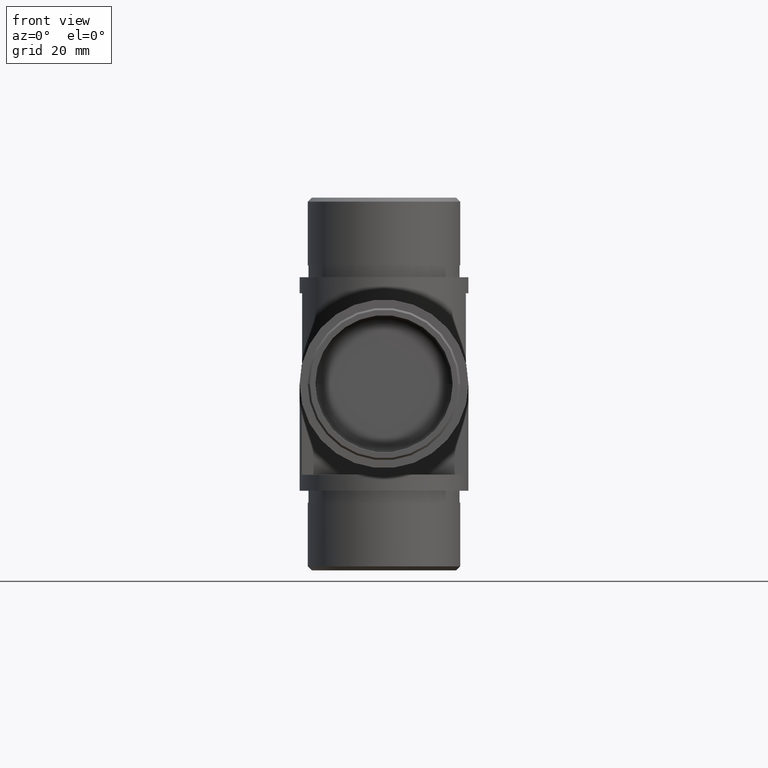
[diagram: clean part render]
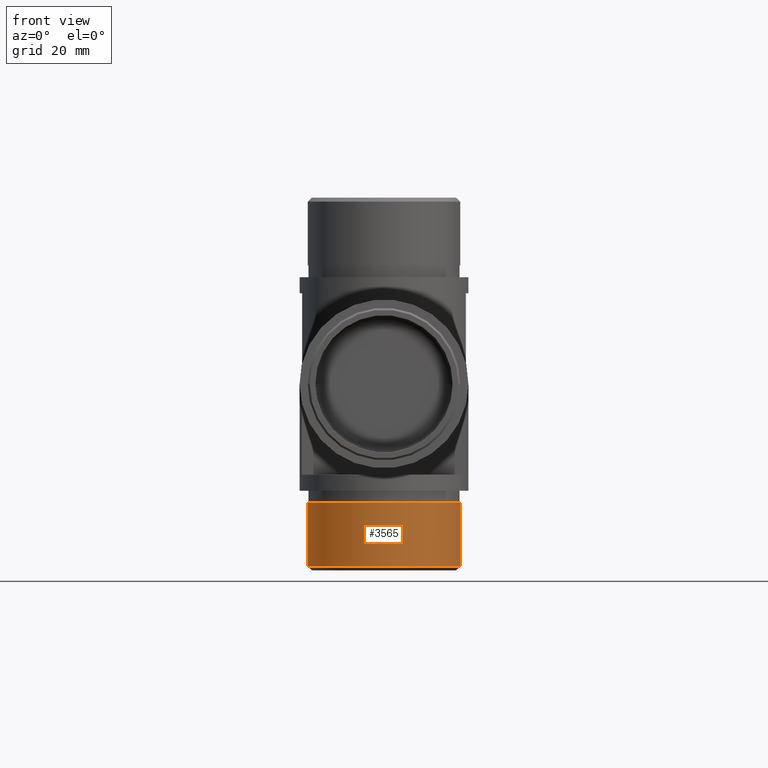
[diagram: same view with one face highlighted and labeled with its STEP entity id]
A machine part, front view. The second image highlights one B-rep face of the part: STEP entity #3565.
In plain terms, the highlighted cylindrical surface (partial cylindrical patch) has radius 19.15 mm, axis along (0, 0, 1).
Its self-contained STEP definition (entity closure, byte-faithful):
#391 = LINE ( 'NONE', #19127, #21326 ) ;
#454 = AXIS2_PLACEMENT_3D ( 'NONE', #8608, #11838, #3737 ) ;
#995 = DIRECTION ( 'NONE',  ( -1.000000000000000000, 0.000000000000000000, 0.000000000000000000 ) ) ;
#1355 = VERTEX_POINT ( 'NONE', #17376 ) ;
#1601 = ORIENTED_EDGE ( 'NONE', *, *, #2992, .T. ) ;
#1922 = EDGE_CURVE ( 'NONE', #1355, #7563, #16718, .T. ) ;
#2941 = DIRECTION ( 'NONE',  ( 0.000000000000000000, 0.000000000000000000, 1.000000000000000000 ) ) ;
#2992 = EDGE_CURVE ( 'NONE', #7563, #14811, #391, .T. ) ;
#3263 = CYLINDRICAL_SURFACE ( 'NONE', #11653, 19.14999999999999858 ) ;
#3333 = CARTESIAN_POINT ( 'NONE',  ( -19.14999999999999858, 2.345198620367181006E-15, -2.999999999999999112 ) ) ;
#3565 = ADVANCED_FACE ( 'NONE', ( #11028 ), #3263, .T. ) ;
#3737 = DIRECTION ( 'NONE',  ( -1.000000000000000000, 0.000000000000000000, 0.000000000000000000 ) ) ;
#4609 = LINE ( 'NONE', #6367, #6175 ) ;
#5360 = CARTESIAN_POINT ( 'NONE',  ( 0.000000000000000000, 0.000000000000000000, -19.99999999999999645 ) ) ;
#6022 = EDGE_CURVE ( 'NONE', #1355, #21419, #4609, .T. ) ;
#6175 = VECTOR ( 'NONE', #6511, 1000.000000000000000 ) ;
#6367 = CARTESIAN_POINT ( 'NONE',  ( -19.14999999999999858, 2.345198620367181006E-15, -19.99999999999999645 ) ) ;
#6511 = DIRECTION ( 'NONE',  ( -0.000000000000000000, -0.000000000000000000, 1.000000000000000000 ) ) ;
#6708 = CIRCLE ( 'NONE', #454, 19.14999999999999858 ) ;
#7062 = ORIENTED_EDGE ( 'NONE', *, *, #19042, .T. ) ;
#7563 = VERTEX_POINT ( 'NONE', #12889 ) ;
#8608 = CARTESIAN_POINT ( 'NONE',  ( 0.000000000000000000, 0.000000000000000000, -2.999999999999999112 ) ) ;
#8711 = DIRECTION ( 'NONE',  ( -0.000000000000000000, -0.000000000000000000, 1.000000000000000000 ) ) ;
#11028 = FACE_OUTER_BOUND ( 'NONE', #12756, .T. ) ;
#11087 = AXIS2_PLACEMENT_3D ( 'NONE', #17774, #2941, #995 ) ;
#11653 = AXIS2_PLACEMENT_3D ( 'NONE', #5360, #8711, #17062 ) ;
#11838 = DIRECTION ( 'NONE',  ( 0.000000000000000000, 0.000000000000000000, -1.000000000000000000 ) ) ;
#12487 = CARTESIAN_POINT ( 'NONE',  ( 19.14999999999999858, 0.000000000000000000, -2.999999999999999112 ) ) ;
#12756 = EDGE_LOOP ( 'NONE', ( #19987, #20554, #1601, #7062 ) ) ;
#12889 = CARTESIAN_POINT ( 'NONE',  ( 19.14999999999999858, 0.000000000000000000, -18.99999999999999645 ) ) ;
#14811 = VERTEX_POINT ( 'NONE', #12487 ) ;
#16718 = CIRCLE ( 'NONE', #11087, 19.14999999999999858 ) ;
#17062 = DIRECTION ( 'NONE',  ( 1.000000000000000000, 0.000000000000000000, 0.000000000000000000 ) ) ;
#17376 = CARTESIAN_POINT ( 'NONE',  ( -19.14999999999999858, 2.345198620367181006E-15, -18.99999999999999645 ) ) ;
#17774 = CARTESIAN_POINT ( 'NONE',  ( 0.000000000000000000, 0.000000000000000000, -18.99999999999999645 ) ) ;
#19042 = EDGE_CURVE ( 'NONE', #14811, #21419, #6708, .T. ) ;
#19127 = CARTESIAN_POINT ( 'NONE',  ( 19.14999999999999858, 0.000000000000000000, -19.99999999999999645 ) ) ;
#19987 = ORIENTED_EDGE ( 'NONE', *, *, #6022, .F. ) ;
#20549 = DIRECTION ( 'NONE',  ( -0.000000000000000000, -0.000000000000000000, 1.000000000000000000 ) ) ;
#20554 = ORIENTED_EDGE ( 'NONE', *, *, #1922, .T. ) ;
#21326 = VECTOR ( 'NONE', #20549, 1000.000000000000000 ) ;
#21419 = VERTEX_POINT ( 'NONE', #3333 ) ;